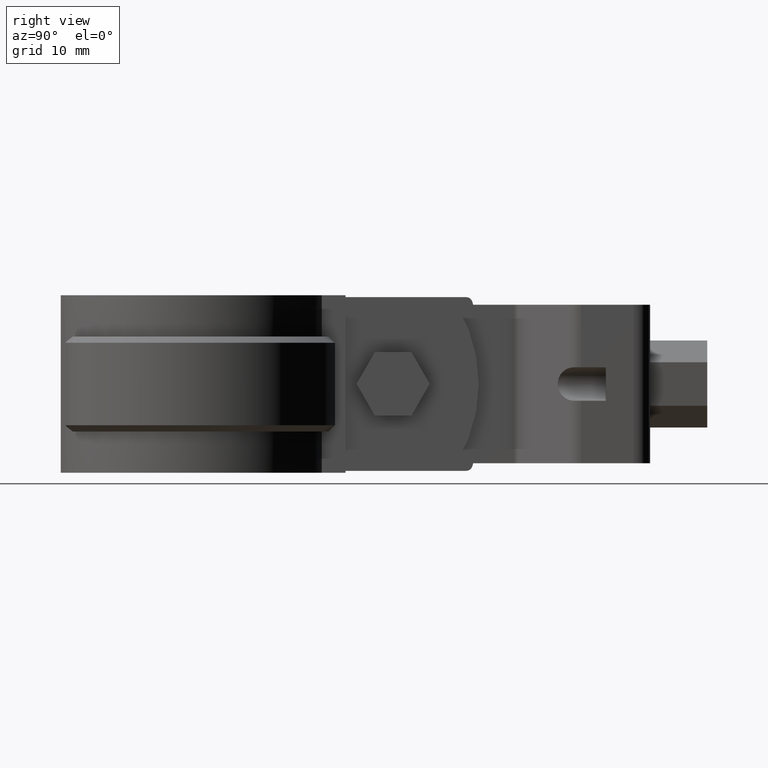
[diagram: clean part render]
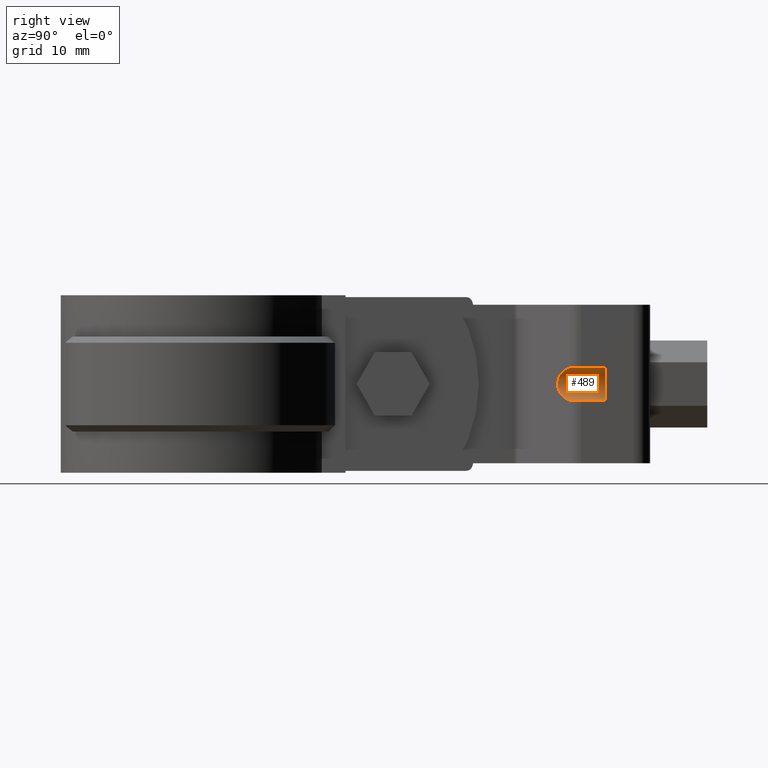
[diagram: same view with one face highlighted and labeled with its STEP entity id]
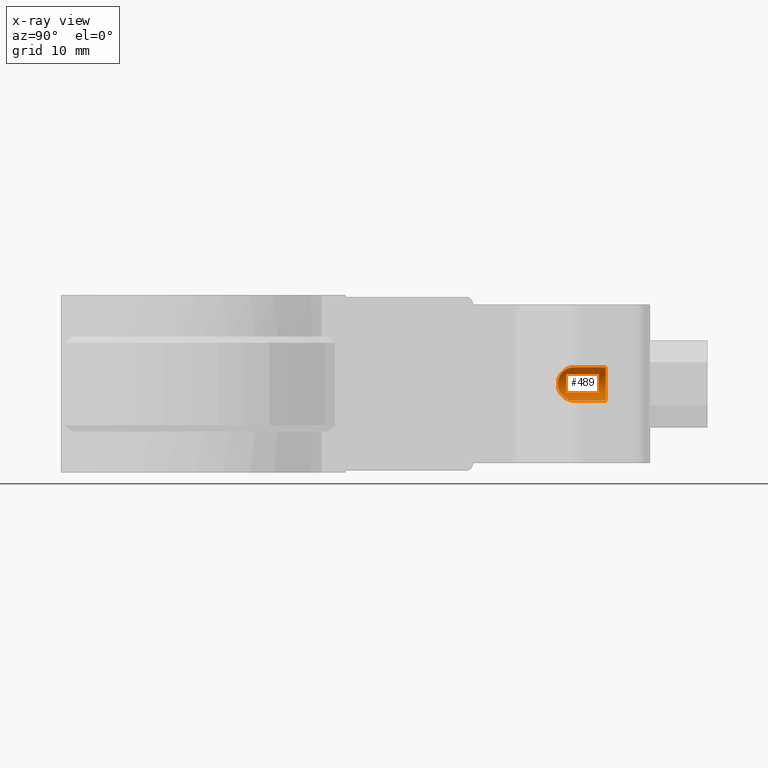
[diagram: x-ray of the same camera — body ghosted, the highlighted face saturated]
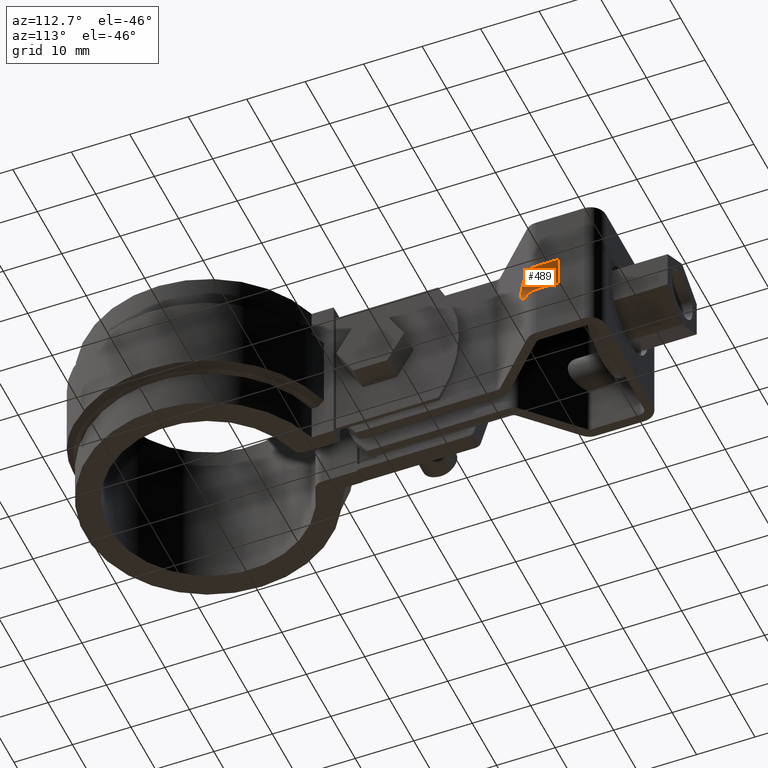
[diagram: same view with one face highlighted and labeled with its STEP entity id]
A machine part, right view. The second image highlights one B-rep face of the part: STEP entity #489.
The next image is the same camera in x-ray: the body ghosted, the highlighted face saturated — about 0% of this face is hidden behind the body in this view.
A second angle (auxiliary view) of the same face is appended — the face is thin or edge-on in the first view.
In plain terms, the highlighted cylindrical surface (edge-blend (fillet) strip) has radius 2.65 mm, axis along (-0, -1, -0).
Its self-contained STEP definition (entity closure, byte-faithful):
#489 = ADVANCED_FACE( '', ( #956 ), #957, .F. );
#956 = FACE_OUTER_BOUND( '', #2049, .T. );
#957 = CYLINDRICAL_SURFACE( '', #2050, 2.65000000000000 );
#2049 = EDGE_LOOP( '', ( #4428, #4429, #4430, #4431, #4432, #4433, #4434, #4435 ) );
#2050 = AXIS2_PLACEMENT_3D( '', #4436, #4437, #4438 );
#4428 = ORIENTED_EDGE( '', *, *, #6511, .F. );
#4429 = ORIENTED_EDGE( '', *, *, #6512, .F. );
#4430 = ORIENTED_EDGE( '', *, *, #6513, .T. );
#4431 = ORIENTED_EDGE( '', *, *, #6514, .T. );
#4432 = ORIENTED_EDGE( '', *, *, #6515, .T. );
#4433 = ORIENTED_EDGE( '', *, *, #6516, .T. );
#4434 = ORIENTED_EDGE( '', *, *, #6517, .F. );
#4435 = ORIENTED_EDGE( '', *, *, #6518, .F. );
#4436 = CARTESIAN_POINT( '', ( 12.2500008116658, 55.0043599149074, -12.4999979459783 ) );
#4437 = DIRECTION( '', ( -6.88262012252394E-009, -1.00000000000000, -1.66499459745878E-008 ) );
#4438 = DIRECTION( '', ( 4.22860643575158E-010, -1.66499459774982E-008, 1.00000000000000 ) );
#6511 = EDGE_CURVE( '', #7704, #7705, #7706, .T. );
#6512 = EDGE_CURVE( '', #7707, #7704, #7708, .T. );
#6513 = EDGE_CURVE( '', #7707, #7709, #7710, .T. );
#6514 = EDGE_CURVE( '', #7709, #7711, #7712, .T. );
#6515 = EDGE_CURVE( '', #7711, #7713, #7714, .T. );
#6516 = EDGE_CURVE( '', #7713, #7715, #7716, .T. );
#6517 = EDGE_CURVE( '', #7717, #7715, #7718, .T. );
#6518 = EDGE_CURVE( '', #7705, #7717, #7719, .T. );
#7704 = VERTEX_POINT( '', #10937 );
#7705 = VERTEX_POINT( '', #10938 );
#7706 = ELLIPSE( '', #10939, 3.70224472166266, 2.65000000000000 );
#7707 = VERTEX_POINT( '', #10940 );
#7708 = B_SPLINE_CURVE_WITH_KNOTS( '', 3, ( #10941, #10942, #10943, #10944, #10945, #10946, #10947, #10948, #10949, #10950 ), .UNSPECIFIED., .F., .F., ( 4, 2, 2, 2, 4 ), ( 0.000000000000000, 0.000517346174284573, 0.00103469234856915, 0.00155203852285372, 0.00206938469713829 ), .UNSPECIFIED. );
#7709 = VERTEX_POINT( '', #10951 );
#7710 = LINE( '', #10952, #10953 );
#7711 = VERTEX_POINT( '', #10954 );
#7712 = CIRCLE( '', #10955, 2.65000000000000 );
#7713 = VERTEX_POINT( '', #10956 );
#7714 = CIRCLE( '', #10957, 2.65000000000000 );
#7715 = VERTEX_POINT( '', #10958 );
#7716 = CIRCLE( '', #10959, 2.65000000000000 );
#7717 = VERTEX_POINT( '', #10960 );
#7718 = LINE( '', #10961, #10962 );
#7719 = B_SPLINE_CURVE_WITH_KNOTS( '', 3, ( #10963, #10964, #10965, #10966, #10967, #10968, #10969, #10970 ), .UNSPECIFIED., .F., .F., ( 4, 2, 2, 4 ), ( 1.73472347597681E-018, 0.000516787748161282, 0.00103357549632256, 0.00206715099264512 ), .UNSPECIFIED. );
#10937 = CARTESIAN_POINT( '', ( 11.4656428121211, 59.2391326538175, -15.0312589214361 ) );
#10938 = CARTESIAN_POINT( '', ( 11.4656428142619, 59.2391325695268, -9.96873682883963 ) );
#10939 = AXIS2_PLACEMENT_3D( '', #12816, #12817, #12818 );
#10940 = CARTESIAN_POINT( '', ( 12.2500008525003, 61.1001657581442, -15.1499978444835 ) );
#10941 = CARTESIAN_POINT( '', ( 12.2500008525003, 61.1001657581442, -15.1499978444835 ) );
#10942 = CARTESIAN_POINT( '', ( 12.2500008512966, 60.9252756938959, -15.1499978473954 ) );
#10943 = CARTESIAN_POINT( '', ( 12.2325338855215, 60.7533332861134, -15.1501615462556 ) );
#10944 = CARTESIAN_POINT( '', ( 12.1640572002335, 60.4151180965542, -15.1488252190308 ) );
#10945 = CARTESIAN_POINT( '', ( 12.1121305583324, 60.2469872486038, -15.1472738114952 ) );
#10946 = CARTESIAN_POINT( '', ( 11.9772127805229, 59.9279537941239, -15.1367885000937 ) );
#10947 = CARTESIAN_POINT( '', ( 11.8947263138635, 59.7769425751928, -15.1279256498475 ) );
#10948 = CARTESIAN_POINT( '', ( 11.7003970451060, 59.4921895661512, -15.0942530808241 ) );
#10949 = CARTESIAN_POINT( '', ( 11.5880232704056, 59.3585282163574, -15.0691807665523 ) );
#10950 = CARTESIAN_POINT( '', ( 11.4656428121211, 59.2391326538175, -15.0312589214361 ) );
#10951 = CARTESIAN_POINT( '', ( 12.2500008793714, 65.0043599590298, -15.1499977794788 ) );
#10952 = CARTESIAN_POINT( '', ( 12.2500008105452, 55.0043599590298, -15.1499979459782 ) );
#10953 = VECTOR( '', #12819, 1000.00000000000 );
#10954 = CARTESIAN_POINT( '', ( 10.6500008795988, 65.0043599610920, -14.6124607962300 ) );
#10955 = AXIS2_PLACEMENT_3D( '', #12820, #12821, #12822 );
#10956 = CARTESIAN_POINT( '', ( 10.6500008813854, 65.0043598907473, -10.3875347613744 ) );
#10957 = AXIS2_PLACEMENT_3D( '', #12823, #12824, #12825 );
#10958 = CARTESIAN_POINT( '', ( 12.2500008816127, 65.0043598707851, -9.84999777947886 ) );
#10959 = AXIS2_PLACEMENT_3D( '', #12826, #12827, #12828 );
#10960 = CARTESIAN_POINT( '', ( 12.2500008547416, 61.1001656698994, -9.84999784448348 ) );
#10961 = CARTESIAN_POINT( '', ( 12.2500008127865, 55.0043598707851, -9.84999794597831 ) );
#10962 = VECTOR( '', #12829, 1000.00000000000 );
#10963 = CARTESIAN_POINT( '', ( 11.4656428142619, 59.2391325695268, -9.96873682883961 ) );
#10964 = CARTESIAN_POINT( '', ( 11.5880016021513, 59.3585069889251, -9.93082169483382 ) );
#10965 = CARTESIAN_POINT( '', ( 11.6979918162117, 59.4892059531284, -9.90625920126246 ) );
#10966 = CARTESIAN_POINT( '', ( 11.8919861456372, 59.7724005720955, -9.87244772833838 ) );
#10967 = CARTESIAN_POINT( '', ( 11.9765778924056, 59.9267257698936, -9.86327259602254 ) );
#10968 = CARTESIAN_POINT( '', ( 12.1789964524670, 60.4045587000778, -9.84749349668729 ) );
#10969 = CARTESIAN_POINT( '', ( 12.2500008523359, 60.7506238278522, -9.84999785030333 ) );
#10970 = CARTESIAN_POINT( '', ( 12.2500008547416, 61.1001656698994, -9.84999784448348 ) );
#12816 = CARTESIAN_POINT( '', ( 12.2500008460789, 60.0043599149076, -12.4999978627286 ) );
#12817 = DIRECTION( '', ( -0.698323830604042, 0.715781969324806, 1.22130394540815E-008 ) );
#12818 = DIRECTION( '', ( 0.715781969324806, 0.698323830604042, 1.13243629947068E-008 ) );
#12819 = DIRECTION( '', ( 6.88262012252394E-009, 1.00000000000000, 1.66499459745878E-008 ) );
#12820 = CARTESIAN_POINT( '', ( 12.2500008804920, 65.0043599149075, -12.4999977794788 ) );
#12821 = DIRECTION( '', ( 6.88262012252394E-009, 1.00000000000000, 1.66499459745878E-008 ) );
#12822 = DIRECTION( '', ( 4.22882245792029E-010, -1.66499459774984E-008, 1.00000000000000 ) );
#12823 = CARTESIAN_POINT( '', ( 12.2500008804920, 65.0043599149075, -12.4999977794788 ) );
#12824 = DIRECTION( '', ( 6.88262012252394E-009, 1.00000000000000, 1.66499459745878E-008 ) );
#12825 = DIRECTION( '', ( 4.22882245792029E-010, -1.66499459774984E-008, 1.00000000000000 ) );
#12826 = CARTESIAN_POINT( '', ( 12.2500008804920, 65.0043599149075, -12.4999977794788 ) );
#12827 = DIRECTION( '', ( 6.88262012252394E-009, 1.00000000000000, 1.66499459745878E-008 ) );
#12828 = DIRECTION( '', ( 4.22882245792029E-010, -1.66499459774984E-008, 1.00000000000000 ) );
#12829 = DIRECTION( '', ( 6.88262012252394E-009, 1.00000000000000, 1.66499459745878E-008 ) );